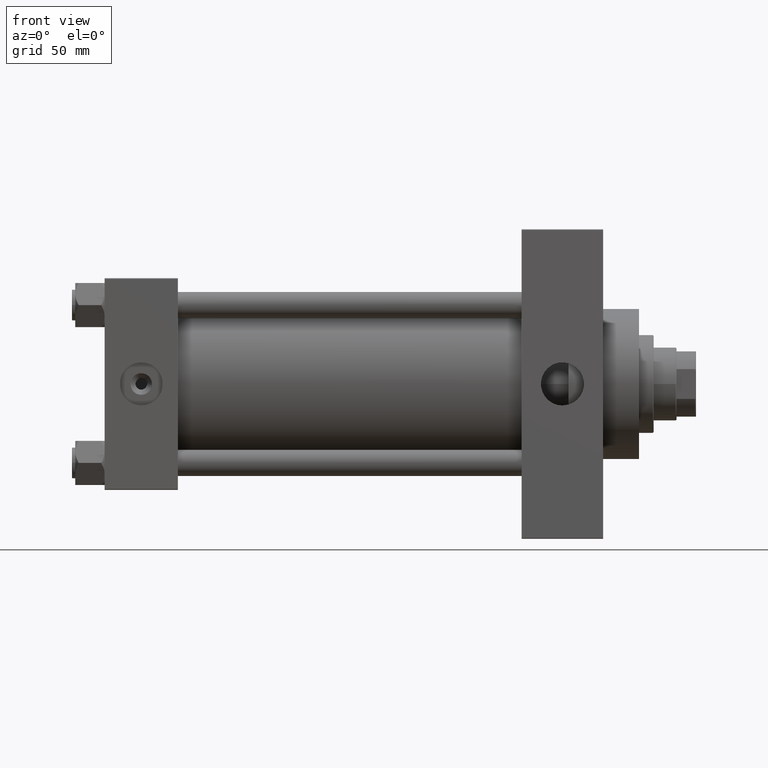
[diagram: clean part render]
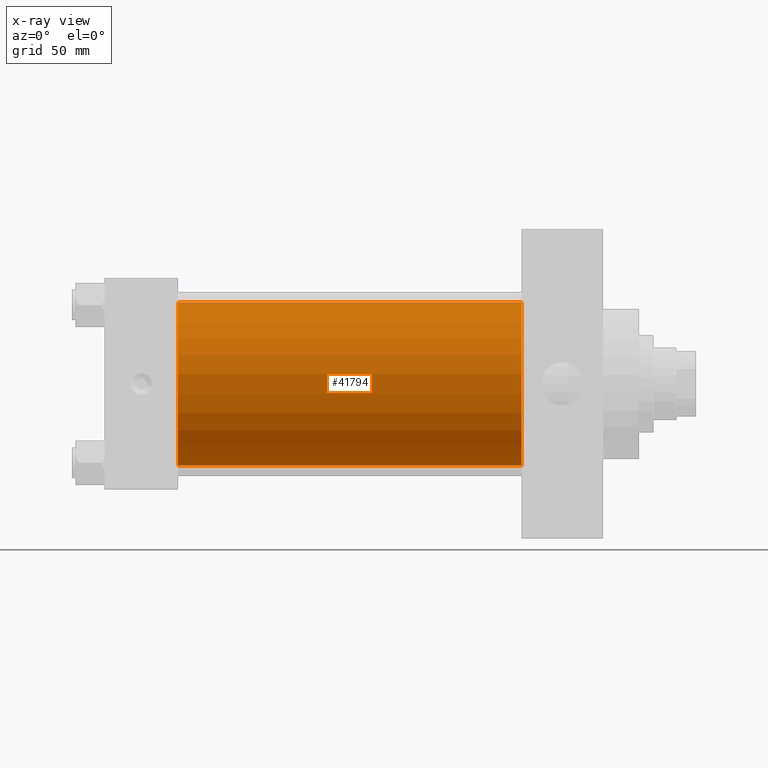
[diagram: x-ray — body ghosted, one internal face saturated and labeled with its STEP entity id]
A machine part, front view, then the same camera in x-ray: the body is ghosted and one INTERNAL B-rep face — a face not visible from any outside direction — is saturated and labeled: STEP entity #41794.
In plain terms, the highlighted cylindrical surface (partial cylindrical patch) has radius 50 mm, axis along (-1, -0, -0).
Its self-contained STEP definition (entity closure, byte-faithful):
#782 = DIRECTION ( 'NONE',  ( -1.000000000000000000, -0.000000000000000000, -0.000000000000000000 ) ) ;
#1074 = LINE ( 'NONE', #12198, #28304 ) ;
#2288 = EDGE_CURVE ( 'NONE', #41377, #20920, #8368, .T. ) ;
#5417 = VECTOR ( 'NONE', #782, 1000.000000000000000 ) ;
#7160 = CYLINDRICAL_SURFACE ( 'NONE', #22525, 50.00000000000000000 ) ;
#7165 = EDGE_CURVE ( 'NONE', #20102, #18569, #1074, .T. ) ;
#8357 = DIRECTION ( 'NONE',  ( 0.000000000000000000, 0.000000000000000000, -1.000000000000000000 ) ) ;
#8368 = LINE ( 'NONE', #42736, #5417 ) ;
#11556 = CIRCLE ( 'NONE', #40626, 50.00000000000000000 ) ;
#12123 = ORIENTED_EDGE ( 'NONE', *, *, #2288, .F. ) ;
#12198 = CARTESIAN_POINT ( 'NONE',  ( 256.0000000000000000, 3.521148781771555838E-15, -50.00000000000000000 ) ) ;
#13315 = EDGE_CURVE ( 'NONE', #20920, #18569, #11556, .T. ) ;
#14062 = ORIENTED_EDGE ( 'NONE', *, *, #7165, .T. ) ;
#18569 = VERTEX_POINT ( 'NONE', #37341 ) ;
#20102 = VERTEX_POINT ( 'NONE', #46343 ) ;
#20920 = VERTEX_POINT ( 'NONE', #30157 ) ;
#21039 = ORIENTED_EDGE ( 'NONE', *, *, #13315, .F. ) ;
#21316 = CARTESIAN_POINT ( 'NONE',  ( 45.00000000000000000, -2.602085213965210642E-15, 0.000000000000000000 ) ) ;
#21498 = AXIS2_PLACEMENT_3D ( 'NONE', #23247, #38673, #8357 ) ;
#21855 = CARTESIAN_POINT ( 'NONE',  ( 256.0000000000000000, -2.602085213965210642E-15, 50.00000000000000000 ) ) ;
#22525 = AXIS2_PLACEMENT_3D ( 'NONE', #46330, #30643, #34434 ) ;
#23247 = CARTESIAN_POINT ( 'NONE',  ( 256.0000000000000000, -2.602085213965210642E-15, 0.000000000000000000 ) ) ;
#23347 = ORIENTED_EDGE ( 'NONE', *, *, #32556, .T. ) ;
#28304 = VECTOR ( 'NONE', #35683, 1000.000000000000000 ) ;
#28661 = DIRECTION ( 'NONE',  ( 1.000000000000000000, 0.000000000000000000, 0.000000000000000000 ) ) ;
#30157 = CARTESIAN_POINT ( 'NONE',  ( 45.00000000000000000, -2.602085213965210642E-15, 50.00000000000000000 ) ) ;
#30643 = DIRECTION ( 'NONE',  ( -1.000000000000000000, -0.000000000000000000, -0.000000000000000000 ) ) ;
#32556 = EDGE_CURVE ( 'NONE', #41377, #20102, #43350, .T. ) ;
#34434 = DIRECTION ( 'NONE',  ( 0.000000000000000000, 0.000000000000000000, 1.000000000000000000 ) ) ;
#35171 = EDGE_LOOP ( 'NONE', ( #23347, #14062, #21039, #12123 ) ) ;
#35683 = DIRECTION ( 'NONE',  ( -1.000000000000000000, -0.000000000000000000, -0.000000000000000000 ) ) ;
#37341 = CARTESIAN_POINT ( 'NONE',  ( 45.00000000000000000, 3.521148781771555838E-15, -50.00000000000000000 ) ) ;
#38673 = DIRECTION ( 'NONE',  ( 1.000000000000000000, 0.000000000000000000, 0.000000000000000000 ) ) ;
#40626 = AXIS2_PLACEMENT_3D ( 'NONE', #21316, #28661, #41033 ) ;
#41033 = DIRECTION ( 'NONE',  ( 0.000000000000000000, 0.000000000000000000, -1.000000000000000000 ) ) ;
#41377 = VERTEX_POINT ( 'NONE', #21855 ) ;
#41794 = ADVANCED_FACE ( 'NONE', ( #45573 ), #7160, .F. ) ;
#42736 = CARTESIAN_POINT ( 'NONE',  ( 256.0000000000000000, -2.602085213965210642E-15, 50.00000000000000000 ) ) ;
#43350 = CIRCLE ( 'NONE', #21498, 50.00000000000000000 ) ;
#45573 = FACE_OUTER_BOUND ( 'NONE', #35171, .T. ) ;
#46330 = CARTESIAN_POINT ( 'NONE',  ( 256.0000000000000000, -2.602085213965210642E-15, 0.000000000000000000 ) ) ;
#46343 = CARTESIAN_POINT ( 'NONE',  ( 256.0000000000000000, 3.521148781771555838E-15, -50.00000000000000000 ) ) ;